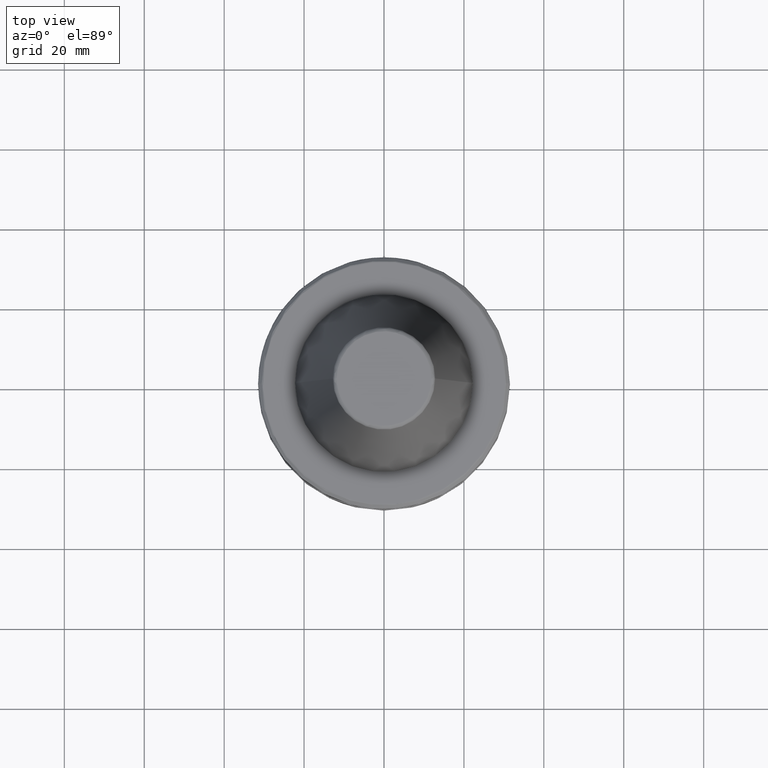
[diagram: clean part render]
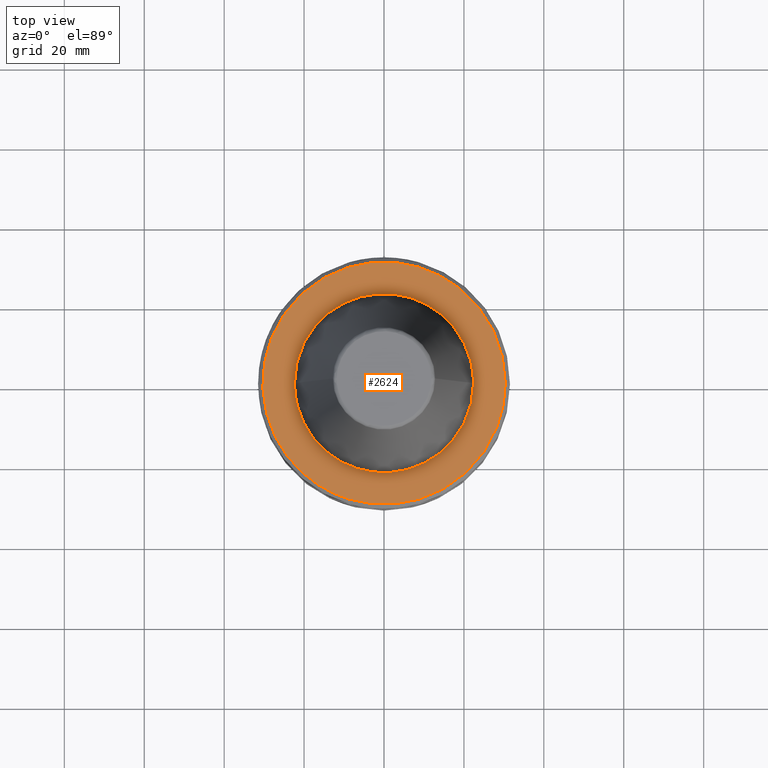
[diagram: same view with one face highlighted and labeled with its STEP entity id]
A machine part, top view. The second image highlights one B-rep face of the part: STEP entity #2624.
In plain terms, the highlighted planar face has unit normal (0, 0, 1).
Its self-contained STEP definition (entity closure, byte-faithful):
#4 = CARTESIAN_POINT ( 'NONE',  ( -13.86393504477004500, 26.99623991430097200, -2.000000000000000000 ) ) ;
#8 = CARTESIAN_POINT ( 'NONE',  ( -4.790134711450524400, -21.89390023238371100, -2.000000000000000000 ) ) ;
#10 = CARTESIAN_POINT ( 'NONE',  ( -4.053654804643145800, -22.03016964884821500, -2.000000000000000400 ) ) ;
#17 = CARTESIAN_POINT ( 'NONE',  ( -19.44404481664019400, 23.28311397324687000, -2.000000000000000400 ) ) ;
#24 = CARTESIAN_POINT ( 'NONE',  ( -4.033857986905861300, -22.03380167325519800, -2.000000000000000900 ) ) ;
#26 = CARTESIAN_POINT ( 'NONE',  ( -3.991735478402046700, -22.04147175140001400, -2.000000000000000000 ) ) ;
#35 = CARTESIAN_POINT ( 'NONE',  ( -23.52996536014796500, 19.16342744047315000, -1.999999999999999600 ) ) ;
#39 = CARTESIAN_POINT ( 'NONE',  ( -3.928543597813360000, -22.05288554609855800, -2.000000000000000000 ) ) ;
#40 = CARTESIAN_POINT ( 'NONE',  ( -3.781039051609005800, -22.07887847609780600, -2.000000000000000400 ) ) ;
#46 = CARTESIAN_POINT ( 'NONE',  ( -28.16784357314933000, 11.25900738457933800, -2.000000000000000000 ) ) ;
#50 = CARTESIAN_POINT ( 'NONE',  ( -3.485802659877216900, -22.12830730557345800, -2.000000000000000400 ) ) ;
#52 = CARTESIAN_POINT ( 'NONE',  ( -2.894420679121409100, -22.21693684243343000, -2.000000000000000400 ) ) ;
#59 = CARTESIAN_POINT ( 'NONE',  ( -30.33434850268801600, -0.9389058282917109900, -2.000000000000000400 ) ) ;
#63 = CARTESIAN_POINT ( 'NONE',  ( -1.708019928440844200, -22.35328342778804300, -2.000000000000000400 ) ) ;
#67 = CARTESIAN_POINT ( 'NONE',  ( -0.6848705035678596100, -22.40001623517999000, -2.000000000000000000 ) ) ;
#76 = CARTESIAN_POINT ( 'NONE',  ( -28.35147241605446000, -10.78739210407821900, -2.000000000000000000 ) ) ;
#78 = CARTESIAN_POINT ( 'NONE',  ( 1.369741007135726100, -22.39996759084313600, -2.000000000000000400 ) ) ;
#87 = CARTESIAN_POINT ( 'NONE',  ( -23.92199290863387900, -18.66095818531789900, -2.000000000000000400 ) ) ;
#91 = CARTESIAN_POINT ( 'NONE',  ( -19.16283713063764400, -11.62407891320974500, -2.000000000000000000 ) ) ;
#97 = CARTESIAN_POINT ( 'NONE',  ( -19.64546217584295800, -23.11334956541279000, -2.000000000000000000 ) ) ;
#100 = CARTESIAN_POINT ( 'NONE',  ( 2.729104587584243000, -22.27531432485545800, -2.000000000000000400 ) ) ;
#107 = CARTESIAN_POINT ( 'NONE',  ( -14.47326145266366700, -26.67452827704320500, -2.000000000000000000 ) ) ;
#109 = CARTESIAN_POINT ( 'NONE',  ( 4.097017186795343800, -22.02214536552509500, -2.000000000000000400 ) ) ;
#119 = FACE_OUTER_BOUND ( 'NONE', #2342, .T. ) ;
#121 = CARTESIAN_POINT ( 'NONE',  ( -18.53468171968460600, -12.57918311306604900, -1.999999999999999600 ) ) ;
#125 = CARTESIAN_POINT ( 'NONE',  ( 4.120618968371013000, -22.01774246194580100, -2.000000000000000400 ) ) ;
#134 = CARTESIAN_POINT ( 'NONE',  ( 4.165236837808812700, -22.00934568661292400, -2.000000000000000000 ) ) ;
#148 = CARTESIAN_POINT ( 'NONE',  ( 4.232134920609001800, -21.99665155892664700, -1.999999999999999600 ) ) ;
#163 = CARTESIAN_POINT ( 'NONE',  ( 4.388029397647224900, -21.96633917484991700, -2.000000000000000000 ) ) ;
#166 = CIRCLE ( 'NONE', #1057, 30.33431457056804700 ) ;
#172 = CARTESIAN_POINT ( 'NONE',  ( 4.699014153741561700, -21.90294339546153100, -2.000000000000000000 ) ) ;
#181 = CARTESIAN_POINT ( 'NONE',  ( 5.317766874001553600, -21.76506779174490100, -2.000000000000000000 ) ) ;
#197 = CARTESIAN_POINT ( 'NONE',  ( 6.542405146806994600, -21.44498040455227500, -1.999999999999999600 ) ) ;
#200 = CARTESIAN_POINT ( 'NONE',  ( 29.28496511360456000, 7.927623278275423700, -2.000000000000000000 ) ) ;
#216 = CARTESIAN_POINT ( 'NONE',  ( 7.570037093129594800, -21.09461490737115600, -2.000000000000000400 ) ) ;
#217 = CARTESIAN_POINT ( 'NONE',  ( 26.23791360764085900, 15.31470929392039800, -2.000000000000000400 ) ) ;
#222 = CARTESIAN_POINT ( 'NONE',  ( 8.287526776482042800, -20.81054815372933200, -2.000000000000000000 ) ) ;
#223 = CARTESIAN_POINT ( 'NONE',  ( 17.53348905833799900, 24.75411212198544700, -1.999999999999999600 ) ) ;
#229 = AXIS2_PLACEMENT_3D ( 'NONE', #343, #1994, #589 ) ;
#230 = CARTESIAN_POINT ( 'NONE',  ( 8.333249195718940100, -20.79228631868154800, -2.000000000000000000 ) ) ;
#234 = CARTESIAN_POINT ( 'NONE',  ( 10.23373916829195500, 28.59794578302451400, -1.999999999999999600 ) ) ;
#246 = CARTESIAN_POINT ( 'NONE',  ( -17.98107825900639200, -13.36824905629754300, -2.000000000000000400 ) ) ;
#253 = PLANE ( 'NONE',  #402 ) ;
#254 = CARTESIAN_POINT ( 'NONE',  ( 8.420970191674745900, -20.75691792898262700, -2.000000000000000000 ) ) ;
#261 = CARTESIAN_POINT ( 'NONE',  ( -21.96633916678071700, -4.388029397836835000, -2.000000000000000000 ) ) ;
#264 = CARTESIAN_POINT ( 'NONE',  ( 8.552344986836052600, -20.70346859882088000, -2.000000000000000900 ) ) ;
#273 = CARTESIAN_POINT ( 'NONE',  ( 8.857439284138854100, -20.57597627581643700, -2.000000000000000000 ) ) ;
#274 = CARTESIAN_POINT ( 'NONE',  ( 9.461840313116967500, -20.30988275263291200, -2.000000000000000000 ) ) ;
#280 = CARTESIAN_POINT ( 'NONE',  ( -15.43930865587911100, 26.11227094434192300, -2.000000000000000400 ) ) ;
#284 = CARTESIAN_POINT ( 'NONE',  ( 10.64749210856316700, -19.73326019756718400, -2.000000000000000400 ) ) ;
#286 = CARTESIAN_POINT ( 'NONE',  ( -5.846925102282645200, -21.64494741349961200, -2.000000000000000000 ) ) ;
#291 = CARTESIAN_POINT ( 'NONE',  ( -19.53336771987599000, 23.20815912961663600, -1.999999999999999600 ) ) ;
#296 = CARTESIAN_POINT ( 'NONE',  ( 11.62407891178553300, -19.16283713545599100, -2.000000000000000000 ) ) ;
#297 = CARTESIAN_POINT ( 'NONE',  ( 12.33667593205085400, -18.69693225998803100, -2.000000000000000400 ) ) ;
#304 = CARTESIAN_POINT ( 'NONE',  ( -25.16642468875459900, 16.94533251061739400, -2.000000000000000000 ) ) ;
#306 = CARTESIAN_POINT ( 'NONE',  ( 12.41893088751900400, -18.64241367805323400, -2.000000000000000000 ) ) ;
#309 = CARTESIAN_POINT ( 'NONE',  ( 12.57918311134769400, -18.53468172407307800, -2.000000000000000000 ) ) ;
#314 = CARTESIAN_POINT ( 'NONE',  ( -28.26991326089169100, 10.99934583375024600, -2.000000000000000000 ) ) ;
#322 = CARTESIAN_POINT ( 'NONE',  ( 12.81838126875511300, -18.37163762944283400, -2.000000000000000000 ) ) ;
#324 = CARTESIAN_POINT ( 'NONE',  ( 13.36824905435640600, -17.98107826301874800, -2.000000000000000000 ) ) ;
#329 = CARTESIAN_POINT ( 'NONE',  ( -30.08025295031816900, -3.967817496690961800, -2.000000000000000400 ) ) ;
#334 = CARTESIAN_POINT ( 'NONE',  ( 14.43493963216165500, -17.15946694768991100, -2.000000000000000400 ) ) ;
#340 = CARTESIAN_POINT ( 'NONE',  ( -27.98957048435147500, -11.72831482739497300, -2.000000000000000000 ) ) ;
#343 = CARTESIAN_POINT ( 'NONE',  ( 0.0000000000000000000, 0.0000000000000000000, -1.999999999989121600 ) ) ;
#344 = CARTESIAN_POINT ( 'NONE',  ( 15.29259728159929000, -16.38581282172689800, -2.000000000000000400 ) ) ;
#349 = CARTESIAN_POINT ( 'NONE',  ( -23.21604298776023600, -19.52449386393572100, -1.999999999999999600 ) ) ;
#354 = CARTESIAN_POINT ( 'NONE',  ( 16.93238116699492200, -14.74595009555934200, -1.999999999999999600 ) ) ;
#366 = CARTESIAN_POINT ( 'NONE',  ( -19.58683755545426700, -23.16305088120773100, -2.000000000000000000 ) ) ;
#369 = CARTESIAN_POINT ( 'NONE',  ( 17.90272196578645800, -13.55154731507344400, -2.000000000000000000 ) ) ;
#373 = CARTESIAN_POINT ( 'NONE',  ( -12.85473386007455900, -27.47687493811404400, -2.000000000000000000 ) ) ;
#377 = CARTESIAN_POINT ( 'NONE',  ( 18.80157305745617400, -12.17662043523567500, -2.000000000000000000 ) ) ;
#385 = CARTESIAN_POINT ( 'NONE',  ( 18.85174392445564400, -12.09879234730396800, -1.999999999999999600 ) ) ;
#389 = CARTESIAN_POINT ( 'NONE',  ( 18.95319762475028100, -11.93926673329125200, -2.000000000000000000 ) ) ;
#394 = CARTESIAN_POINT ( 'NONE',  ( -8.749999995258276500, -29.04493313039568700, -1.999999999989121600 ) ) ;
#401 = CARTESIAN_POINT ( 'NONE',  ( 19.10378741485976300, -11.69915883794632100, -2.000000000000000900 ) ) ;
#402 = AXIS2_PLACEMENT_3D ( 'NONE', #979, #1225, #2870 ) ;
#411 = CARTESIAN_POINT ( 'NONE',  ( 19.44402826945450300, -11.13317076186053900, -2.000000000000000000 ) ) ;
#428 = CARTESIAN_POINT ( 'NONE',  ( 20.07996868933456400, -9.978249328565233600, -2.000000000000000000 ) ) ;
#437 = VERTEX_POINT ( 'NONE', #2005 ) ;
#441 = CARTESIAN_POINT ( 'NONE',  ( 20.89346075911152000, -8.076228133315543900, -2.000000000000000000 ) ) ;
#453 = CARTESIAN_POINT ( 'NONE',  ( 20.94241911247447900, -7.949210505917846200, -2.000000000000000400 ) ) ;
#456 = CARTESIAN_POINT ( 'NONE',  ( 28.98844242100857800, 8.936353995784951800, -2.000000000000000400 ) ) ;
#463 = CARTESIAN_POINT ( 'NONE',  ( 21.05388027571188700, -7.652045637538825500, -2.000000000000000400 ) ) ;
#465 = CARTESIAN_POINT ( 'NONE',  ( 23.86348149767346900, 18.74583124071950000, -2.000000000000000000 ) ) ;
#473 = CARTESIAN_POINT ( 'NONE',  ( -8.076228132638496100, -20.89346076553155700, -2.000000000000000000 ) ) ;
#476 = CARTESIAN_POINT ( 'NONE',  ( 17.32210052135244300, 24.90216815940324200, -1.999999999999999600 ) ) ;
#483 = CARTESIAN_POINT ( 'NONE',  ( 22.03016964062746700, -4.053654804808609800, -1.999999999999999600 ) ) ;
#491 = EDGE_CURVE ( 'NONE', #2143, #1651, #1128, .T. ) ;
#493 = CARTESIAN_POINT ( 'NONE',  ( 22.03380065951906600, -4.033863421417841300, -2.000000000000000000 ) ) ;
#502 = CARTESIAN_POINT ( 'NONE',  ( 22.04146975589081600, -3.991746218888060600, -2.000000000000000000 ) ) ;
#511 = CARTESIAN_POINT ( 'NONE',  ( -22.00934567844255000, -4.165236837982451600, -2.000000000000000900 ) ) ;
#515 = CARTESIAN_POINT ( 'NONE',  ( 22.05288210168188100, -3.928562168890041800, -2.000000000000000900 ) ) ;
#521 = CARTESIAN_POINT ( 'NONE',  ( -10.25527747053567200, 28.56051272945362000, -1.999999999999999600 ) ) ;
#526 = CARTESIAN_POINT ( 'NONE',  ( 22.07887181716179400, -3.781074995471222600, -2.000000000000000000 ) ) ;
#527 = CARTESIAN_POINT ( 'NONE',  ( 22.12829488265795400, -3.485869754939841900, -2.000000000000000400 ) ) ;
#533 = CARTESIAN_POINT ( 'NONE',  ( -15.82650416975778300, 25.87847514487764000, -2.000000000000000000 ) ) ;
#534 = CARTESIAN_POINT ( 'NONE',  ( 22.21691555179570400, -2.894535699102095600, -2.000000000000000000 ) ) ;
#541 = CARTESIAN_POINT ( 'NONE',  ( -20.18085361748751800, 22.66156372729950900, -2.000000000000000000 ) ) ;
#544 = CARTESIAN_POINT ( 'NONE',  ( -8.749999996351261800, 29.04493313006641500, -1.999999999989121600 ) ) ;
#558 = CARTESIAN_POINT ( 'NONE',  ( -25.76806297211553700, 16.00617103037162200, -2.000000000000000400 ) ) ;
#562 = CARTESIAN_POINT ( 'NONE',  ( 22.40000000835618000, 0.0000000000000000000, -1.999999999933527200 ) ) ;
#569 = CARTESIAN_POINT ( 'NONE',  ( -28.64170118580448600, 10.03381388220148900, -2.000000000000000000 ) ) ;
#577 = CARTESIAN_POINT ( 'NONE',  ( -29.89843002777615100, -5.125329618266889900, -2.000000000000000000 ) ) ;
#584 = CARTESIAN_POINT ( 'NONE',  ( -26.73991494629399300, -14.33538825517832300, -2.000000000000000000 ) ) ;
#589 = DIRECTION ( 'NONE',  ( -1.000000000000000000, 0.0000000000000000000, 0.0000000000000000000 ) ) ;
#597 = CARTESIAN_POINT ( 'NONE',  ( -23.04373955721994300, -19.72706941016794200, -2.000000000000000000 ) ) ;
#606 = CARTESIAN_POINT ( 'NONE',  ( -18.12012486186990000, -24.34769762064760800, -2.000000000000000000 ) ) ;
#612 = CARTESIAN_POINT ( 'NONE',  ( -12.44326423161334600, -27.66475818882873500, -2.000000000000000400 ) ) ;
#616 = CARTESIAN_POINT ( 'NONE',  ( -7.652045636929345000, -21.05388028232549400, -2.000000000000000000 ) ) ;
#643 = CARTESIAN_POINT ( 'NONE',  ( -9.978249327583729000, -20.07996869487152800, -2.000000000000000000 ) ) ;
#648 = CARTESIAN_POINT ( 'NONE',  ( 29.96800634096607000, -4.700169782952198900, -2.000000000000000000 ) ) ;
#681 = CARTESIAN_POINT ( 'NONE',  ( 30.29044348444404000, 1.924618328761884100, -2.000000000000000400 ) ) ;
#683 = CARTESIAN_POINT ( 'NONE',  ( 12.89712743390991200, -27.45609076625076000, -2.000000000000000000 ) ) ;
#688 = CARTESIAN_POINT ( 'NONE',  ( 28.91337399538332400, 9.175500369840071000, -2.000000000000000000 ) ) ;
#694 = ORIENTED_EDGE ( 'NONE', *, *, #491, .T. ) ;
#705 = CARTESIAN_POINT ( 'NONE',  ( 22.09103779322449800, 20.79586719158085000, -2.000000000000000000 ) ) ;
#710 = CARTESIAN_POINT ( 'NONE',  ( 16.57532165577689300, 25.41806659426582700, -2.000000000000000000 ) ) ;
#738 = CARTESIAN_POINT ( 'NONE',  ( -22.02214485035051400, -4.097019926222026600, -2.000000000000000000 ) ) ;
#747 = CARTESIAN_POINT ( 'NONE',  ( -11.79741038276943900, 27.94701350929045700, -2.000000000000000000 ) ) ;
#758 = CARTESIAN_POINT ( 'NONE',  ( -15.91830314625390300, 25.82205752340509600, -2.000000000000000400 ) ) ;
#777 = CARTESIAN_POINT ( 'NONE',  ( -22.03925103768566300, 20.85010840707907300, -2.000000000000000000 ) ) ;
#788 = CARTESIAN_POINT ( 'NONE',  ( -25.90711989048321600, 15.77949180602314700, -2.000000000000000000 ) ) ;
#796 = CARTESIAN_POINT ( 'NONE',  ( -29.48219112218133700, 7.166029825863305700, -2.000000000000000000 ) ) ;
#812 = CARTESIAN_POINT ( 'NONE',  ( -29.83653600378522300, -5.474012999355475800, -1.999999999999999600 ) ) ;
#819 = CARTESIAN_POINT ( 'NONE',  ( -26.16251182605156000, -15.35303256530216700, -2.000000000000000000 ) ) ;
#826 = CARTESIAN_POINT ( 'NONE',  ( -22.99071937721490100, -19.78883610483995500, -2.000000000000000000 ) ) ;
#838 = CARTESIAN_POINT ( 'NONE',  ( -16.50694295203247800, -25.45098990459518300, -2.000000000000000000 ) ) ;
#842 = CARTESIAN_POINT ( 'NONE',  ( -20.30988274684888500, -9.461840314018971300, -2.000000000000000400 ) ) ;
#852 = CARTESIAN_POINT ( 'NONE',  ( -12.34489369146922400, -27.70874622258861900, -2.000000000000000400 ) ) ;
#872 = CARTESIAN_POINT ( 'NONE',  ( -14.74595009305637600, -16.93238117048405300, -2.000000000000000900 ) ) ;
#878 = CARTESIAN_POINT ( 'NONE',  ( 26.95284704872256800, -13.91851500325020300, -2.000000000000000900 ) ) ;
#890 = ORIENTED_EDGE ( 'NONE', *, *, #1869, .T. ) ;
#892 = CARTESIAN_POINT ( 'NONE',  ( 30.21732498836204400, -3.076640717618839700, -2.000000000000000900 ) ) ;
#913 = CARTESIAN_POINT ( 'NONE',  ( 30.33431457495774500, 0.7711358328221357100, -2.000000000000000400 ) ) ;
#924 = CARTESIAN_POINT ( 'NONE',  ( -8.201342725864023500, -20.84466758619909800, -2.000000000000000000 ) ) ;
#928 = CARTESIAN_POINT ( 'NONE',  ( 30.07931383398774700, 3.933347608445231900, -1.999999999999999600 ) ) ;
#940 = CARTESIAN_POINT ( 'NONE',  ( 28.63103487922194600, 10.05560206730424300, -2.000000000000000400 ) ) ;
#949 = CARTESIAN_POINT ( 'NONE',  ( 21.35872266831525200, 21.54035235708963800, -2.000000000000000000 ) ) ;
#954 = CARTESIAN_POINT ( 'NONE',  ( 14.32933948057620400, 26.74188312055665100, -2.000000000000000400 ) ) ;
#978 = CARTESIAN_POINT ( 'NONE',  ( -20.81054814740527800, -8.287526777194990800, -2.000000000000000400 ) ) ;
#979 = CARTESIAN_POINT ( 'NONE',  ( -30.69832634999999900, -29.39347233099999800, -2.000000000000000000 ) ) ;
#988 = CARTESIAN_POINT ( 'NONE',  ( -22.40000001097766400, -1.370271815920219400, -2.000000000000000000 ) ) ;
#1002 = CARTESIAN_POINT ( 'NONE',  ( -12.17875664467613800, 27.78220798525248700, -2.000000000000000000 ) ) ;
#1012 = CARTESIAN_POINT ( 'NONE',  ( -16.58929509922856800, 25.40715637296482800, -2.000000000000000400 ) ) ;
#1023 = CARTESIAN_POINT ( 'NONE',  ( -22.74423028801591000, 20.07207445569294500, -2.000000000000000000 ) ) ;
#1032 = CARTESIAN_POINT ( 'NONE',  ( -25.94788095678221400, 15.71237849002951700, -2.000000000000000000 ) ) ;
#1044 = CARTESIAN_POINT ( 'NONE',  ( -29.72705207087749800, 6.040443365021620700, -1.999999999999999600 ) ) ;
#1054 = CARTESIAN_POINT ( 'NONE',  ( -29.32969380276623600, -7.838464997525505000, -2.000000000000000000 ) ) ;
#1056 = CARTESIAN_POINT ( 'NONE',  ( 8.749999998521261100, -29.04493312941268700, -1.999999999989121600 ) ) ;
#1057 = AXIS2_PLACEMENT_3D ( 'NONE', #1303, #1297, #1294 ) ;
#1068 = CARTESIAN_POINT ( 'NONE',  ( -26.01989003437595100, -15.59283809925753800, -2.000000000000000000 ) ) ;
#1081 = CARTESIAN_POINT ( 'NONE',  ( -21.63382071837072800, -21.29030445627731500, -2.000000000000000400 ) ) ;
#1094 = CARTESIAN_POINT ( 'NONE',  ( -16.09363692141360100, -25.71320829329507200, -1.999999999999999600 ) ) ;
#1097 = CARTESIAN_POINT ( 'NONE',  ( -11.93926673176203900, -18.95319762943002200, -2.000000000000000000 ) ) ;
#1102 = CARTESIAN_POINT ( 'NONE',  ( -11.14822061600337300, -28.23993289273504100, -1.999999999999999100 ) ) ;
#1128 = B_SPLINE_CURVE_WITH_KNOTS ( 'NONE', 3,
 ( #1941, #2363, #1643, #2472, #1692, #2195, #2339, #1533, #1766, #2150, #1562, #1546, #2511, #1599, #1540, #2214, #1569, #1808, #1557, #1488, #2001, #2637, #1769, #1552, #1513, #1418, #1362, #1930, #2785, #2961, #2962, #2553, #2387, #2000, #3124, #1758, #2305, #2942, #1752, #1896, #2274, #1846, #2148, #2888, #2694, #2995, #2951, #3135, #3098, #3096, #3168, #2078, #2074, #3001, #1709, #3000, #1665, #2444, #1494, #1425, #2646, #2220, #1529, #1931, #2555, #1677, #2414, #2489, #1518, #1938, #1707, #1979, #1927, #1747, #1522, #1603, #2110, #1567, #1516, #2991, #1436, #2428, #1616, #1638, #1686, #1658, #2564, #1681, #2533, #1475, #1468, #1354, #1791, #1460, #1455, #1577, #1623, #1653, #1456, #1466, #1503, #1497, #2504, #1679, #1480, #1673 ),
 .UNSPECIFIED., .F., .F.,
 ( 4, 1, 1, 1, 1, 1, 2, 2, 1, 1, 1, 1, 2, 2, 1, 1, 1, 2, 2, 2, 1, 1, 1, 2, 2, 1, 1, 1, 1, 2, 2, 1, 1, 1, 1, 1, 2, 2, 2, 1, 1, 1, 1, 1, 2, 2, 1, 1, 1, 1, 2, 2, 1, 1, 1, 2, 2, 2, 1, 1, 1, 2, 2, 1, 1, 1, 1, 2, 2, 1, 1, 1, 1, 1, 2, 2, 4 ),
 ( 0.0000000000000000000, 0.03125000000000140200, 0.04687500000000208900, 0.05468750000000244200, 0.05859375000000261600, 0.06054687500000269200, 0.06152343750000272000, 0.06250000000000273400, 0.09375000000000334500, 0.1093750000000036200, 0.1171875000000037700, 0.1210937500000039100, 0.1230468750000040000, 0.1250000000000040500, 0.1562500000000060000, 0.1718750000000069700, 0.1796875000000074700, 0.1835937500000077400, 0.1875000000000079900, 0.2500000000000127700, 0.2812500000000151000, 0.2968750000000162600, 0.3046875000000168200, 0.3085937500000170400, 0.3125000000000173200, 0.3437500000000187600, 0.3593750000000194300, 0.3671875000000198200, 0.3710937500000199800, 0.3730468750000200400, 0.3750000000000201500, 0.4062500000000215400, 0.4218750000000222600, 0.4296875000000225900, 0.4335937500000227600, 0.4355468750000228700, 0.4365234375000229300, 0.4375000000000229800, 0.5000000000000230900, 0.5312500000000232000, 0.5468750000000232000, 0.5546875000000232000, 0.5585937500000232000, 0.5605468750000230900, 0.5615234375000230900, 0.5625000000000229800, 0.5937500000000222000, 0.6093750000000217600, 0.6171875000000215400, 0.6210937500000215400, 0.6230468750000215400, 0.6250000000000214300, 0.6562500000000203200, 0.6718750000000197600, 0.6796875000000195400, 0.6835937500000193200, 0.6875000000000192100, 0.7500000000000158800, 0.7812500000000142100, 0.7968750000000133200, 0.8046875000000128800, 0.8085937500000126600, 0.8125000000000123200, 0.8437500000000105500, 0.8593750000000095500, 0.8671875000000091000, 0.8710937500000088800, 0.8730468750000087700, 0.8750000000000085500, 0.9062500000000063300, 0.9218750000000051100, 0.9296875000000046600, 0.9335937500000043300, 0.9355468750000042200, 0.9365234375000041100, 0.9375000000000041100, 1.000000000000000000 ),
 .UNSPECIFIED. ) ;
#1132 = CARTESIAN_POINT ( 'NONE',  ( -7.949210505261334900, -20.94241911895257100, -2.000000000000000000 ) ) ;
#1136 = CARTESIAN_POINT ( 'NONE',  ( 14.86304721641551100, -26.46506223650218500, -1.999999999999999600 ) ) ;
#1178 = CARTESIAN_POINT ( 'NONE',  ( 30.01202196902659800, 4.410366571173019800, -2.000000000000000000 ) ) ;
#1182 = CARTESIAN_POINT ( 'NONE',  ( 22.40000001067058500, -0.6849581377763511700, -1.999999999999999600 ) ) ;
#1186 = CARTESIAN_POINT ( 'NONE',  ( 27.63043995594169600, 12.53122094857506700, -2.000000000000000400 ) ) ;
#1198 = CARTESIAN_POINT ( 'NONE',  ( 21.13380436672222400, 21.76105186226379800, -2.000000000000000000 ) ) ;
#1204 = CARTESIAN_POINT ( 'NONE',  ( 13.38908001657671300, 27.21986155912927800, -2.000000000000000000 ) ) ;
#1210 = CARTESIAN_POINT ( 'NONE',  ( 22.40000000835618000, 0.0000000000000000000, -1.999999999933527200 ) ) ;
#1222 = CARTESIAN_POINT ( 'NONE',  ( -21.76506778409653000, -5.317766874270956700, -2.000000000000000000 ) ) ;
#1225 = DIRECTION ( 'NONE',  ( 0.0000000000000000000, 0.0000000000000000000, 1.000000000000000000 ) ) ;
#1238 = CARTESIAN_POINT ( 'NONE',  ( -12.26930747251484800, 27.74229724682614400, -2.000000000000000000 ) ) ;
#1246 = CARTESIAN_POINT ( 'NONE',  ( -18.55689912336255900, 24.00122431732050300, -2.000000000000000000 ) ) ;
#1256 = ORIENTED_EDGE ( 'NONE', *, *, #1575, .T. ) ;
#1260 = CARTESIAN_POINT ( 'NONE',  ( -22.90886212186387600, 19.88354019471463700, -2.000000000000000000 ) ) ;
#1264 = CARTESIAN_POINT ( 'NONE',  ( -11.69915883649470500, -19.10378741964200000, -2.000000000000000000 ) ) ;
#1272 = CARTESIAN_POINT ( 'NONE',  ( -27.06379350546797400, 13.75230535336096000, -2.000000000000000400 ) ) ;
#1276 = CARTESIAN_POINT ( 'NONE',  ( -8.160831274275462700, -20.86055757804999900, -2.000000000000000400 ) ) ;
#1282 = CARTESIAN_POINT ( 'NONE',  ( -29.79366742603726300, 5.702766236665639500, -2.000000000000000000 ) ) ;
#1289 = CARTESIAN_POINT ( 'NONE',  ( -28.59158493528356700, -10.13841457430544000, -2.000000000000000000 ) ) ;
#1294 = DIRECTION ( 'NONE',  ( -1.000000000000000000, 0.0000000000000000000, 0.0000000000000000000 ) ) ;
#1297 = DIRECTION ( 'NONE',  ( -0.0000000000000000000, -0.0000000000000000000, -1.000000000000000000 ) ) ;
#1300 = CARTESIAN_POINT ( 'NONE',  ( -25.97605902264090700, -15.66574758102302500, -2.000000000000000400 ) ) ;
#1303 = CARTESIAN_POINT ( 'NONE',  ( 0.0000000000000000000, 0.0000000000000000000, -1.999999999989121600 ) ) ;
#1309 = CARTESIAN_POINT ( 'NONE',  ( -20.09991644206128600, -22.72080783087966400, -2.000000000000000000 ) ) ;
#1316 = CARTESIAN_POINT ( 'NONE',  ( -15.99464280227116200, -25.77484223783531500, -2.000000000000000900 ) ) ;
#1324 = CARTESIAN_POINT ( 'NONE',  ( -8.749999995258276500, -29.04493313039568700, -1.999999999989121600 ) ) ;
#1329 = CARTESIAN_POINT ( 'NONE',  ( -12.09879234572204600, -18.85174392906756300, -2.000000000000000900 ) ) ;
#1338 = CARTESIAN_POINT ( 'NONE',  ( 20.84466757983567600, -8.201342726563039400, -2.000000000000000000 ) ) ;
#1353 = B_SPLINE_CURVE_WITH_KNOTS ( 'NONE', 3,
 ( #3169, #1932, #521, #2139, #747, #2327, #1002, #2592, #1238, #2894, #1469, #4, #1720, #280, #1943, #533, #2155, #758, #2332, #1012, #2611, #1246, #2905, #1481, #17, #1725, #291, #1956, #541, #2160, #777, #2341, #1023, #2628, #1260, #2917, #1496, #35, #1734, #304, #1967, #558, #2169, #788, #2358, #1032, #2638, #1272, #2935, #1505, #46, #1745, #314, #1971, #569, #2181, #796, #2367, #1044, #2649, #1282, #2943, #1523, #59, #1756, #329, #1980, #577, #2188, #812, #2372, #1054, #2669, #1289, #2953, #1530, #76, #1767, #340, #1991, #584, #2196, #819, #2385, #1068, #2680, #1300, #2966, #1541, #87, #1779, #349, #1999, #597, #2204, #826, #2396, #1081, #2692, #1309, #2982, #1550, #97, #1793, #366, #2006, #606, #2215, #838, #2405, #1094, #2704, #1316, #2993, #1565, #107, #1801, #373, #2017, #612, #2222, #852, #2415, #1102, #2718, #1324 ),
 .UNSPECIFIED., .F., .F.,
 ( 4, 1, 1, 1, 1, 1, 2, 2, 1, 1, 1, 1, 1, 2, 2, 1, 1, 1, 1, 1, 2, 2, 1, 1, 1, 1, 1, 2, 2, 1, 1, 1, 1, 1, 2, 2, 1, 1, 1, 1, 2, 2, 1, 1, 1, 2, 2, 2, 1, 1, 1, 2, 2, 1, 1, 1, 1, 2, 2, 1, 1, 1, 1, 1, 2, 2, 1, 1, 1, 1, 1, 2, 2, 1, 1, 1, 1, 1, 2, 2, 1, 1, 1, 1, 1, 2, 2, 1, 1, 1, 1, 1, 2, 2, 4 ),
 ( 0.0000000000000000000, 0.03124999999999831400, 0.04687499999999744600, 0.05468749999999696800, 0.05859374999999672500, 0.06054687499999664900, 0.06152343749999664900, 0.06249999999999664200, 0.09374999999999542000, 0.1093749999999947500, 0.1171874999999943900, 0.1210937499999942500, 0.1230468749999941900, 0.1240234374999940700, 0.1249999999999939800, 0.1562499999999872900, 0.1718749999999840100, 0.1796874999999824300, 0.1835937499999816800, 0.1855468749999812600, 0.1865234374999810400, 0.1874999999999808500, 0.2187499999999765700, 0.2343749999999743800, 0.2421874999999732400, 0.2460937499999726900, 0.2480468749999724400, 0.2490234374999723600, 0.2499999999999722700, 0.2812499999999717400, 0.2968749999999715200, 0.3046874999999714100, 0.3085937499999713000, 0.3105468749999713000, 0.3115234374999713000, 0.3124999999999713000, 0.3437499999999729100, 0.3593749999999736900, 0.3671874999999740800, 0.3710937499999742400, 0.3730468749999743000, 0.3749999999999744100, 0.4062499999999758000, 0.4218749999999765200, 0.4296874999999768500, 0.4335937499999770700, 0.4374999999999772400, 0.4999999999999802400, 0.5312499999999817900, 0.5468749999999824600, 0.5546874999999827900, 0.5585937499999831200, 0.5624999999999833500, 0.5937499999999846800, 0.6093749999999854600, 0.6171874999999857900, 0.6210937499999860100, 0.6230468749999861200, 0.6249999999999862300, 0.6562499999999881200, 0.6718749999999890100, 0.6796874999999895600, 0.6835937499999897900, 0.6855468749999899000, 0.6865234374999899000, 0.6874999999999900100, 0.7187499999999956700, 0.7343749999999984500, 0.7421874999999997800, 0.7460937500000003300, 0.7480468750000006700, 0.7490234375000007800, 0.7500000000000007800, 0.7812500000000030000, 0.7968750000000041100, 0.8046875000000046600, 0.8085937500000048800, 0.8105468750000050000, 0.8115234375000050000, 0.8125000000000048800, 0.8437500000000022200, 0.8593750000000007800, 0.8671875000000002200, 0.8710937500000000000, 0.8730468749999998900, 0.8740234374999997800, 0.8749999999999997800, 0.9062499999999998900, 0.9218749999999998900, 0.9296874999999998900, 0.9335937500000000000, 0.9355468750000000000, 0.9365234375000001100, 0.9375000000000001100, 1.000000000000000000 ),
 .UNSPECIFIED. ) ;
#1354 = CARTESIAN_POINT ( 'NONE',  ( 20.75691792272389000, 8.420970192399499500, -2.000000000000000000 ) ) ;
#1362 = CARTESIAN_POINT ( 'NONE',  ( -16.93238116704767300, 14.74595009550162000, -2.000000000000000400 ) ) ;
#1373 = CARTESIAN_POINT ( 'NONE',  ( 28.81921695750475700, -9.467094502670475400, -2.000000000000000400 ) ) ;
#1384 = CARTESIAN_POINT ( 'NONE',  ( 24.85979782895296700, -17.40291328486915400, -2.000000000000000400 ) ) ;
#1395 = CARTESIAN_POINT ( 'NONE',  ( 29.99094538698036800, 4.551510424771911400, -2.000000000000000400 ) ) ;
#1400 = CARTESIAN_POINT ( 'NONE',  ( 21.89390022448612100, -4.790134711685517700, -2.000000000000000000 ) ) ;
#1406 = CARTESIAN_POINT ( 'NONE',  ( 27.18531222176667900, 13.45883579409428400, -2.000000000000000000 ) ) ;
#1416 = CARTESIAN_POINT ( 'NONE',  ( -13.55154731310642900, -17.90272196970963800, -2.000000000000000000 ) ) ;
#1418 = CARTESIAN_POINT ( 'NONE',  ( -17.90272196576564700, 13.55154731508927100, -2.000000000000000400 ) ) ;
#1419 = CARTESIAN_POINT ( 'NONE',  ( 19.54191334571602200, 23.22680738813151200, -2.000000000000000000 ) ) ;
#1422 = CARTESIAN_POINT ( 'NONE',  ( 13.16287410203241500, 27.32968643841569200, -1.999999999999999600 ) ) ;
#1425 = CARTESIAN_POINT ( 'NONE',  ( 3.991735478399390100, 22.04147175139975100, -1.999999999999999600 ) ) ;
#1436 = CARTESIAN_POINT ( 'NONE',  ( 17.15946694420549400, 14.43493963440650600, -2.000000000000000000 ) ) ;
#1454 = CARTESIAN_POINT ( 'NONE',  ( -20.57597626975594800, -8.857439284936020800, -2.000000000000000000 ) ) ;
#1455 = CARTESIAN_POINT ( 'NONE',  ( 21.09461490073368500, 7.570037093688072500, -2.000000000000000000 ) ) ;
#1456 = CARTESIAN_POINT ( 'NONE',  ( 21.96633916678201400, 4.388029397830709200, -2.000000000000000400 ) ) ;
#1460 = CARTESIAN_POINT ( 'NONE',  ( 20.81054814740506500, 8.287526777195934000, -2.000000000000000000 ) ) ;
#1466 = CARTESIAN_POINT ( 'NONE',  ( 21.99665155078732300, 4.232134920784139000, -2.000000000000000400 ) ) ;
#1468 = CARTESIAN_POINT ( 'NONE',  ( 20.70346859262468800, 8.552344987576608700, -2.000000000000000000 ) ) ;
#1469 = CARTESIAN_POINT ( 'NONE',  ( -12.93535722674042400, 27.44673653023387800, -2.000000000000000000 ) ) ;
#1475 = CARTESIAN_POINT ( 'NONE',  ( 20.57597626976470900, 8.857439284919520300, -2.000000000000000000 ) ) ;
#1480 = CARTESIAN_POINT ( 'NONE',  ( 22.40000001097767100, 1.370271815916555700, -1.999999999999999100 ) ) ;
#1481 = CARTESIAN_POINT ( 'NONE',  ( -19.31862117306250700, 23.38753201388479800, -2.000000000000000000 ) ) ;
#1488 = CARTESIAN_POINT ( 'NONE',  ( -20.07996868931588400, 9.978249328607537500, -2.000000000000000400 ) ) ;
#1494 = CARTESIAN_POINT ( 'NONE',  ( 3.928543597808767300, 22.05288554609809300, -2.000000000000000000 ) ) ;
#1496 = CARTESIAN_POINT ( 'NONE',  ( -22.95702003230420000, 19.82792287352721100, -2.000000000000000000 ) ) ;
#1497 = CARTESIAN_POINT ( 'NONE',  ( 22.01774245375534600, 4.120618968540661300, -2.000000000000000400 ) ) ;
#1503 = CARTESIAN_POINT ( 'NONE',  ( 22.00934567844292600, 4.165236837980620200, -2.000000000000000000 ) ) ;
#1505 = CARTESIAN_POINT ( 'NONE',  ( -28.02167320665008200, 11.62091287132663600, -2.000000000000000000 ) ) ;
#1513 = CARTESIAN_POINT ( 'NONE',  ( -18.80157305745747100, 12.17662043523467500, -2.000000000000000000 ) ) ;
#1516 = CARTESIAN_POINT ( 'NONE',  ( 14.74595009301250800, 16.93238117054285400, -2.000000000000000400 ) ) ;
#1518 = CARTESIAN_POINT ( 'NONE',  ( 8.160831274269966700, 20.86055757805182500, -2.000000000000000000 ) ) ;
#1522 = CARTESIAN_POINT ( 'NONE',  ( 11.93926673176089200, 18.95319762943182000, -2.000000000000000000 ) ) ;
#1523 = CARTESIAN_POINT ( 'NONE',  ( -30.33424671947239300, 1.877811656582892400, -2.000000000000000400 ) ) ;
#1529 = CARTESIAN_POINT ( 'NONE',  ( 4.790134711405798400, 21.89390023239861800, -2.000000000000000400 ) ) ;
#1530 = CARTESIAN_POINT ( 'NONE',  ( -28.39230734260408400, -10.67945682077628100, -2.000000000000000000 ) ) ;
#1533 = CARTESIAN_POINT ( 'NONE',  ( -22.04146975589081600, 3.991746218885305900, -1.999999999999999600 ) ) ;
#1540 = CARTESIAN_POINT ( 'NONE',  ( -20.94241911247749100, 7.949210505911340300, -2.000000000000000400 ) ) ;
#1541 = CARTESIAN_POINT ( 'NONE',  ( -24.81884912106690400, -17.47771018748383700, -2.000000000000000000 ) ) ;
#1546 = CARTESIAN_POINT ( 'NONE',  ( -21.64494740608344600, 5.846925102607626100, -2.000000000000000400 ) ) ;
#1550 = CARTESIAN_POINT ( 'NONE',  ( -19.70267057813662200, -23.06468291248901900, -2.000000000000000000 ) ) ;
#1552 = CARTESIAN_POINT ( 'NONE',  ( -18.85174392445306400, 12.09879234730981600, -2.000000000000000000 ) ) ;
#1557 = CARTESIAN_POINT ( 'NONE',  ( -20.54870398183353300, 8.948981903838408400, -2.000000000000000000 ) ) ;
#1562 = CARTESIAN_POINT ( 'NONE',  ( -21.89390022449347100, 4.790134711669678000, -2.000000000000000900 ) ) ;
#1563 = CIRCLE ( 'NONE', #229, 30.33431457056804700 ) ;
#1565 = CARTESIAN_POINT ( 'NONE',  ( -15.36896004670845700, -26.16184323529070400, -1.999999999999999600 ) ) ;
#1567 = CARTESIAN_POINT ( 'NONE',  ( 13.55154731316298600, 17.90272196966803600, -1.999999999999999600 ) ) ;
#1569 = CARTESIAN_POINT ( 'NONE',  ( -20.86055757166954500, 8.160831274964353500, -1.999999999999999600 ) ) ;
#1574 = CARTESIAN_POINT ( 'NONE',  ( 30.33431457056804700, 0.0000000000000000000, -1.999999999989127100 ) ) ;
#1575 = EDGE_CURVE ( 'NONE', #1740, #2763, #2448, .T. ) ;
#1577 = CARTESIAN_POINT ( 'NONE',  ( 21.44498039746019200, 6.542405147188623500, -2.000000000000000000 ) ) ;
#1578 = CARTESIAN_POINT ( 'NONE',  ( 30.33431457497231800, -1.542959060756516500, -1.999999999999999600 ) ) ;
#1588 = CARTESIAN_POINT ( 'NONE',  ( 29.95230555146723000, -4.799207299988145400, -1.999999999999999600 ) ) ;
#1597 = ORIENTED_EDGE ( 'NONE', *, *, #2815, .F. ) ;
#1599 = CARTESIAN_POINT ( 'NONE',  ( -21.05388027571751800, 7.652045637526698300, -2.000000000000000000 ) ) ;
#1601 = CARTESIAN_POINT ( 'NONE',  ( 29.92839304592521900, -4.947676280212855100, -2.000000000000000000 ) ) ;
#1603 = CARTESIAN_POINT ( 'NONE',  ( 12.09879234572143300, 18.85174392906850500, -2.000000000000000900 ) ) ;
#1604 = EDGE_CURVE ( 'NONE', #2705, #437, #166, .T. ) ;
#1608 = CARTESIAN_POINT ( 'NONE',  ( 29.87006795060429500, -5.293492833432644300, -2.000000000000000400 ) ) ;
#1612 = CARTESIAN_POINT ( 'NONE',  ( 28.86752176973920600, -9.318756927311326900, -2.000000000000000000 ) ) ;
#1614 = CARTESIAN_POINT ( 'NONE',  ( 29.74330076373739500, -5.982681670654143200, -2.000000000000000000 ) ) ;
#1616 = CARTESIAN_POINT ( 'NONE',  ( 18.37163762518639800, 12.81838127051495800, -2.000000000000000900 ) ) ;
#1623 = CARTESIAN_POINT ( 'NONE',  ( 21.76506778410063700, 5.317766874251321800, -2.000000000000000000 ) ) ;
#1626 = CARTESIAN_POINT ( 'NONE',  ( -12.17662043362020800, -18.80157306203985400, -2.000000000000000400 ) ) ;
#1637 = CARTESIAN_POINT ( 'NONE',  ( 29.44929840510347300, -7.351282268224775200, -2.000000000000000000 ) ) ;
#1638 = CARTESIAN_POINT ( 'NONE',  ( 18.53468171969471400, 12.57918311305249000, -1.999999999999999600 ) ) ;
#1639 = CARTESIAN_POINT ( 'NONE',  ( 29.63299433789082100, 6.571761916065993200, -2.000000000000000000 ) ) ;
#1643 = CARTESIAN_POINT ( 'NONE',  ( -22.35325504265290800, 1.708173288287334600, -1.999999999999999600 ) ) ;
#1644 = CARTESIAN_POINT ( 'NONE',  ( 21.26570262374876600, -7.054554282976593700, -2.000000000000000000 ) ) ;
#1646 = CARTESIAN_POINT ( 'NONE',  ( 29.12792269501712300, -8.507607791504156600, -2.000000000000000000 ) ) ;
#1648 = CARTESIAN_POINT ( 'NONE',  ( 27.04741519290263000, 13.73385100729112400, -2.000000000000000000 ) ) ;
#1651 = VERTEX_POINT ( 'NONE', #1210 ) ;
#1653 = CARTESIAN_POINT ( 'NONE',  ( 21.90294338753573900, 4.699014153944027300, -2.000000000000000000 ) ) ;
#1655 = CARTESIAN_POINT ( 'NONE',  ( 28.77086676128252300, -9.613867879765170000, -2.000000000000000000 ) ) ;
#1658 = CARTESIAN_POINT ( 'NONE',  ( 18.69693225547596800, 12.33667593371616400, -2.000000000000000000 ) ) ;
#1659 = CARTESIAN_POINT ( 'NONE',  ( 17.82744021350118400, 24.54442542351202800, -2.000000000000000000 ) ) ;
#1665 = CARTESIAN_POINT ( 'NONE',  ( 3.485802659860605300, 22.12830730557174200, -1.999999999999999600 ) ) ;
#1668 = ORIENTED_EDGE ( 'NONE', *, *, #1890, .T. ) ;
#1670 = CARTESIAN_POINT ( 'NONE',  ( 28.65551639303922500, -9.955275910145012100, -2.000000000000000000 ) ) ;
#1672 = CARTESIAN_POINT ( 'NONE',  ( 11.67444807647342700, 28.04068962653051500, -1.999999999999999600 ) ) ;
#1673 = CARTESIAN_POINT ( 'NONE',  ( 22.40000000835618000, 0.0000000000000000000, -1.999999999933527200 ) ) ;
#1677 = CARTESIAN_POINT ( 'NONE',  ( 7.652045636895108400, 21.05388028233691200, -2.000000000000000000 ) ) ;
#1679 = CARTESIAN_POINT ( 'NONE',  ( 22.27534676231670800, 2.728929275164632400, -1.999999999999999600 ) ) ;
#1681 = CARTESIAN_POINT ( 'NONE',  ( 19.73326019233899600, 10.64749210967427100, -2.000000000000000400 ) ) ;
#1684 = CARTESIAN_POINT ( 'NONE',  ( 28.41468268165364100, -10.63383923954029900, -2.000000000000000000 ) ) ;
#1686 = CARTESIAN_POINT ( 'NONE',  ( 18.64241367359246500, 12.41893088918845000, -2.000000000000000000 ) ) ;
#1690 = CARTESIAN_POINT ( 'NONE',  ( 27.89248335928646200, -11.97395497287320300, -2.000000000000000000 ) ) ;
#1692 = CARTESIAN_POINT ( 'NONE',  ( -22.12829488265795800, 3.485869754922647200, -2.000000000000000400 ) ) ;
#1695 = CARTESIAN_POINT ( 'NONE',  ( -21.90294338753334500, -4.699014153955477700, -2.000000000000000000 ) ) ;
#1701 = EDGE_LOOP ( 'NONE', ( #890, #694 ) ) ;
#1702 = CARTESIAN_POINT ( 'NONE',  ( 26.80685778623102800, -14.19768185609991400, -2.000000000000000400 ) ) ;
#1707 = CARTESIAN_POINT ( 'NONE',  ( 8.948981903015386800, 20.54870398785878300, -2.000000000000000000 ) ) ;
#1709 = CARTESIAN_POINT ( 'NONE',  ( 1.708019928402878300, 22.35328342778412400, -2.000000000000000000 ) ) ;
#1713 = CARTESIAN_POINT ( 'NONE',  ( 26.65975982099701400, -14.47430759436279700, -2.000000000000000400 ) ) ;
#1715 = CARTESIAN_POINT ( 'NONE',  ( 26.30695837363680000, -15.11375304871028300, -2.000000000000000000 ) ) ;
#1720 = CARTESIAN_POINT ( 'NONE',  ( -14.91891150650396900, 26.41603201928793600, -2.000000000000000000 ) ) ;
#1722 = CARTESIAN_POINT ( 'NONE',  ( 23.33843514651465200, -19.39570259170696400, -2.000000000000000400 ) ) ;
#1723 = CARTESIAN_POINT ( 'NONE',  ( 22.23768576478844500, -20.64855763321275000, -2.000000000000000000 ) ) ;
#1725 = CARTESIAN_POINT ( 'NONE',  ( -19.49765729365970700, 23.23816722204913200, -2.000000000000000000 ) ) ;
#1727 = CARTESIAN_POINT ( 'NONE',  ( 21.66150931711510500, -21.25208093491370700, -2.000000000000000900 ) ) ;
#1729 = CARTESIAN_POINT ( 'NONE',  ( 20.98428383707103600, -21.90527740289385500, -2.000000000000000000 ) ) ;
#1734 = CARTESIAN_POINT ( 'NONE',  ( -24.32014381572162500, 18.16524756378626600, -2.000000000000000000 ) ) ;
#1738 = CARTESIAN_POINT ( 'NONE',  ( 30.33431457056804700, 0.0000000000000000000, -1.999999999989127100 ) ) ;
#1739 = CARTESIAN_POINT ( 'NONE',  ( 20.91051519338373800, -21.97570147255803300, -2.000000000000000000 ) ) ;
#1740 = VERTEX_POINT ( 'NONE', #1056 ) ;
#1741 = CARTESIAN_POINT ( 'NONE',  ( 20.76050751762748400, -22.11747805115144400, -1.999999999999999600 ) ) ;
#1745 = CARTESIAN_POINT ( 'NONE',  ( -28.22925040110534000, 11.10329216926238900, -2.000000000000000400 ) ) ;
#1747 = CARTESIAN_POINT ( 'NONE',  ( 11.69915883649278900, 19.10378741964498400, -2.000000000000000400 ) ) ;
#1749 = CARTESIAN_POINT ( 'NONE',  ( 20.53450424748459500, -22.32891804263963200, -1.999999999999999600 ) ) ;
#1751 = CARTESIAN_POINT ( 'NONE',  ( 20.00022098825824200, -22.81370388796543500, -2.000000000000000000 ) ) ;
#1752 = CARTESIAN_POINT ( 'NONE',  ( -8.552344986805241700, 20.70346859883634500, -2.000000000000000400 ) ) ;
#1756 = CARTESIAN_POINT ( 'NONE',  ( -30.26949578131196000, -2.341511649823079500, -2.000000000000000000 ) ) ;
#1758 = CARTESIAN_POINT ( 'NONE',  ( -10.64749210843171700, 19.73326019763321400, -2.000000000000000400 ) ) ;
#1760 = CARTESIAN_POINT ( 'NONE',  ( 18.90388528756719600, -23.74897903936363300, -2.000000000000000000 ) ) ;
#1762 = CARTESIAN_POINT ( 'NONE',  ( 17.91656466028057400, -24.49184938755630000, -1.999999999999999600 ) ) ;
#1766 = CARTESIAN_POINT ( 'NONE',  ( -22.03380065951906600, 4.033863421416446800, -1.999999999999999600 ) ) ;
#1767 = CARTESIAN_POINT ( 'NONE',  ( -28.33020065102957800, -10.84312523421790800, -2.000000000000000000 ) ) ;
#1769 = CARTESIAN_POINT ( 'NONE',  ( -18.95319762474537100, 11.93926673330238100, -1.999999999999999600 ) ) ;
#1771 = CARTESIAN_POINT ( 'NONE',  ( 17.19473273509293400, -24.99028535241623300, -1.999999999999999600 ) ) ;
#1779 = CARTESIAN_POINT ( 'NONE',  ( -23.45453179581802400, -19.23892485865907900, -2.000000000000000000 ) ) ;
#1783 = CARTESIAN_POINT ( 'NONE',  ( 17.15432187163298400, -25.01803868001894000, -1.999999999999999600 ) ) ;
#1791 = CARTESIAN_POINT ( 'NONE',  ( 20.79228631238094500, 8.333249196433461800, -2.000000000000000000 ) ) ;
#1793 = CARTESIAN_POINT ( 'NONE',  ( -19.60727952734606200, -23.14575034748246600, -2.000000000000000000 ) ) ;
#1797 = CARTESIAN_POINT ( 'NONE',  ( 17.07126456106308200, -25.07478705869351300, -1.999999999999999600 ) ) ;
#1801 = CARTESIAN_POINT ( 'NONE',  ( -13.39910544360528500, -27.21845959032815200, -2.000000000000000400 ) ) ;
#1803 = CARTESIAN_POINT ( 'NONE',  ( 16.94649284957991900, -25.15958491513842800, -2.000000000000000000 ) ) ;
#1808 = CARTESIAN_POINT ( 'NONE',  ( -20.84466757983634000, 8.201342726561531300, -2.000000000000000000 ) ) ;
#1814 = CARTESIAN_POINT ( 'NONE',  ( 16.65405863672091500, -25.35517359920790200, -2.000000000000000400 ) ) ;
#1819 = CARTESIAN_POINT ( 'NONE',  ( 13.02675932775863500, -27.39482814550383000, -2.000000000000000000 ) ) ;
#1830 = CARTESIAN_POINT ( 'NONE',  ( 12.98468914486458700, -27.41478953217453800, -2.000000000000000000 ) ) ;
#1837 = CARTESIAN_POINT ( 'NONE',  ( 12.76566073768757700, -27.51771898115031300, -2.000000000000000400 ) ) ;
#1846 = CARTESIAN_POINT ( 'NONE',  ( -8.287526776485403700, 20.81054815372847200, -1.999999999999999600 ) ) ;
#1848 = CARTESIAN_POINT ( 'NONE',  ( 12.45803620463637200, -27.65925269574582400, -2.000000000000000000 ) ) ;
#1859 = CARTESIAN_POINT ( 'NONE',  ( 11.83931150440451100, -27.93325831092310800, -2.000000000000000000 ) ) ;
#1869 = EDGE_CURVE ( 'NONE', #1651, #2143, #2355, .T. ) ;
#1870 = CARTESIAN_POINT ( 'NONE',  ( 10.58795956742288700, -28.44502228522262400, -2.000000000000000000 ) ) ;
#1876 = CARTESIAN_POINT ( 'NONE',  ( 29.09066434467212400, 8.600888071295818400, -2.000000000000000000 ) ) ;
#1887 = CARTESIAN_POINT ( 'NONE',  ( 25.35837477805116800, 16.73074219767378400, -1.999999999999999600 ) ) ;
#1890 = EDGE_CURVE ( 'NONE', #2705, #3014, #1353, .T. ) ;
#1893 = CARTESIAN_POINT ( 'NONE',  ( 17.40675641328700300, 24.84306716860866600, -2.000000000000000000 ) ) ;
#1896 = CARTESIAN_POINT ( 'NONE',  ( -8.420970191656710600, 20.75691792899169000, -1.999999999999999600 ) ) ;
#1898 = CARTESIAN_POINT ( 'NONE',  ( 8.749999998521261100, -29.04493312941268700, -1.999999999989121600 ) ) ;
#1899 = CARTESIAN_POINT ( 'NONE',  ( 8.750000000561737300, 29.04493312879797900, -1.999999999989121600 ) ) ;
#1903 = CARTESIAN_POINT ( 'NONE',  ( 9.491539273122217700, -28.82153896709930800, -2.000000000000000400 ) ) ;
#1921 = CARTESIAN_POINT ( 'NONE',  ( -21.99665155078666600, -4.232134920787297400, -2.000000000000000000 ) ) ;
#1927 = CARTESIAN_POINT ( 'NONE',  ( 11.13317076057627600, 19.44402827448635000, -2.000000000000000000 ) ) ;
#1930 = CARTESIAN_POINT ( 'NONE',  ( -15.29259728157291300, 16.38581282175576700, -2.000000000000000400 ) ) ;
#1931 = CARTESIAN_POINT ( 'NONE',  ( 5.846925102204362000, 21.64494741352570600, -1.999999999999999600 ) ) ;
#1932 = CARTESIAN_POINT ( 'NONE',  ( -9.356194274630784200, 28.86231264468276300, -1.999999999999999600 ) ) ;
#1938 = CARTESIAN_POINT ( 'NONE',  ( 8.201342725864188700, 20.84466758619885200, -2.000000000000000000 ) ) ;
#1941 = CARTESIAN_POINT ( 'NONE',  ( -22.40000000835618000, 3.033704079351152500E-015, -1.999999999933527200 ) ) ;
#1943 = CARTESIAN_POINT ( 'NONE',  ( -15.69773446019372200, 25.95697612500904200, -2.000000000000000000 ) ) ;
#1948 = CARTESIAN_POINT ( 'NONE',  ( -17.15946694416710000, -14.43493963445796900, -2.000000000000000000 ) ) ;
#1956 = CARTESIAN_POINT ( 'NONE',  ( -19.54991186123814700, 23.19422695980921400, -2.000000000000000000 ) ) ;
#1967 = CARTESIAN_POINT ( 'NONE',  ( -25.57066662732033900, 16.32153201810774900, -2.000000000000000400 ) ) ;
#1971 = CARTESIAN_POINT ( 'NONE',  ( -28.28944248218890700, 10.94903154329216500, -2.000000000000000400 ) ) ;
#1979 = CARTESIAN_POINT ( 'NONE',  ( 9.978249327579375100, 20.07996869487834600, -2.000000000000000000 ) ) ;
#1980 = CARTESIAN_POINT ( 'NONE',  ( -29.95723620414082000, -4.778453517228570000, -2.000000000000000900 ) ) ;
#1991 = CARTESIAN_POINT ( 'NONE',  ( -27.45564390892030800, -12.95231799914597700, -2.000000000000000400 ) ) ;
#1994 = DIRECTION ( 'NONE',  ( -0.0000000000000000000, -0.0000000000000000000, -1.000000000000000000 ) ) ;
#1999 = CARTESIAN_POINT ( 'NONE',  ( -23.09560902081891200, -19.66642478372554600, -2.000000000000000000 ) ) ;
#2000 = CARTESIAN_POINT ( 'NONE',  ( -12.33667593206023700, 18.69693225998331300, -2.000000000000000000 ) ) ;
#2001 = CARTESIAN_POINT ( 'NONE',  ( -19.44402826944049400, 11.13317076189226300, -2.000000000000000400 ) ) ;
#2005 = CARTESIAN_POINT ( 'NONE',  ( 8.750000000561737300, 29.04493312879797900, -1.999999999989121600 ) ) ;
#2006 = CARTESIAN_POINT ( 'NONE',  ( -18.99923140258205800, -23.65919824253869000, -2.000000000000000000 ) ) ;
#2017 = CARTESIAN_POINT ( 'NONE',  ( -12.58072467355881600, -27.60269503479284500, -1.999999999999999600 ) ) ;
#2030 = EDGE_CURVE ( 'NONE', #2763, #437, #2407, .T. ) ;
#2074 = CARTESIAN_POINT ( 'NONE',  ( -1.369741007092340100, 22.39996759084760600, -2.000000000000000400 ) ) ;
#2078 = CARTESIAN_POINT ( 'NONE',  ( -2.729104587523075500, 22.27531432485993800, -2.000000000000000000 ) ) ;
#2086 = CARTESIAN_POINT ( 'NONE',  ( 28.94354626675334400, 9.079875147990051700, -1.999999999999999600 ) ) ;
#2093 = CARTESIAN_POINT ( 'NONE',  ( 23.07697715943190200, 19.71942414204537300, -2.000000000000000400 ) ) ;
#2101 = CARTESIAN_POINT ( 'NONE',  ( 17.27856042286642700, 24.93239677698530700, -2.000000000000000000 ) ) ;
#2110 = CARTESIAN_POINT ( 'NONE',  ( 12.17662043361667700, 18.80157306204245100, -2.000000000000000000 ) ) ;
#2127 = CARTESIAN_POINT ( 'NONE',  ( -8.948981903017866600, -20.54870398785488900, -1.999999999999999600 ) ) ;
#2129 = CARTESIAN_POINT ( 'NONE',  ( -22.01774245375515100, -4.120618968541586800, -2.000000000000000400 ) ) ;
#2139 = CARTESIAN_POINT ( 'NONE',  ( -11.28634347684387900, 28.15964176063168600, -1.999999999999999600 ) ) ;
#2143 = VERTEX_POINT ( 'NONE', #2580 ) ;
#2148 = CARTESIAN_POINT ( 'NONE',  ( -7.570037093076011900, 21.09461490738469500, -2.000000000000000000 ) ) ;
#2150 = CARTESIAN_POINT ( 'NONE',  ( -22.03016964062724300, 4.053654804809110800, -2.000000000000000000 ) ) ;
#2155 = CARTESIAN_POINT ( 'NONE',  ( -15.88159621830097200, 25.84464895972168100, -1.999999999999999600 ) ) ;
#2160 = CARTESIAN_POINT ( 'NONE',  ( -21.06538918724755400, 21.85288491029300700, -2.000000000000000400 ) ) ;
#2169 = CARTESIAN_POINT ( 'NONE',  ( -25.86557998839119300, 15.84762535113324800, -2.000000000000000000 ) ) ;
#2181 = CARTESIAN_POINT ( 'NONE',  ( -29.07849509524519900, 8.724304935164340700, -2.000000000000000000 ) ) ;
#2184 = CARTESIAN_POINT ( 'NONE',  ( -11.13317076057954000, -19.44402827448124100, -2.000000000000000000 ) ) ;
#2188 = CARTESIAN_POINT ( 'NONE',  ( -29.85787375159586800, -5.356460499773565000, -1.999999999999999100 ) ) ;
#2195 = CARTESIAN_POINT ( 'NONE',  ( -22.07887181716179400, 3.781074995462021500, -2.000000000000000000 ) ) ;
#2196 = CARTESIAN_POINT ( 'NONE',  ( -26.35884680882500700, -15.01569002210854000, -2.000000000000000000 ) ) ;
#2204 = CARTESIAN_POINT ( 'NONE',  ( -23.00910326896766000, -19.76745851432722700, -2.000000000000000400 ) ) ;
#2214 = CARTESIAN_POINT ( 'NONE',  ( -20.89346075911328900, 8.076228133311749600, -2.000000000000000000 ) ) ;
#2215 = CARTESIAN_POINT ( 'NONE',  ( -17.05178887089172700, -25.09290025068343500, -2.000000000000000400 ) ) ;
#2220 = CARTESIAN_POINT ( 'NONE',  ( 4.053654804644544600, 22.03016964884775700, -1.999999999999999600 ) ) ;
#2222 = CARTESIAN_POINT ( 'NONE',  ( -12.38425493177509300, -27.69117520606475900, -2.000000000000000400 ) ) ;
#2242 = CARTESIAN_POINT ( 'NONE',  ( 26.90401139526187900, -14.01269187805806900, -2.000000000000000400 ) ) ;
#2249 = CARTESIAN_POINT ( 'NONE',  ( 29.97603395982143900, -4.648682603492288100, -2.000000000000000000 ) ) ;
#2271 = CARTESIAN_POINT ( 'NONE',  ( 30.33431457056804700, 0.0000000000000000000, -1.999999999989127100 ) ) ;
#2274 = CARTESIAN_POINT ( 'NONE',  ( -8.333249195709706600, 20.79228631868618000, -2.000000000000000000 ) ) ;
#2277 = CARTESIAN_POINT ( 'NONE',  ( 30.16248612147864000, 3.264710714094713100, -2.000000000000000900 ) ) ;
#2280 = CARTESIAN_POINT ( 'NONE',  ( 28.89857725821295600, 9.222007285069759400, -2.000000000000000000 ) ) ;
#2284 = CARTESIAN_POINT ( 'NONE',  ( 21.58098036722272500, 21.31923488251243300, -2.000000000000000000 ) ) ;
#2289 = ORIENTED_EDGE ( 'NONE', *, *, #1604, .F. ) ;
#2296 = CARTESIAN_POINT ( 'NONE',  ( 15.55828448136631800, 26.06241723165343800, -2.000000000000000400 ) ) ;
#2305 = CARTESIAN_POINT ( 'NONE',  ( -9.461840313018397500, 20.30988275268242700, -2.000000000000000400 ) ) ;
#2306 = CARTESIAN_POINT ( 'NONE',  ( -16.38581281856855700, -15.29259728426454700, -2.000000000000000400 ) ) ;
#2319 = CARTESIAN_POINT ( 'NONE',  ( -22.27534676231669800, -2.728929275168354700, -1.999999999999999600 ) ) ;
#2327 = CARTESIAN_POINT ( 'NONE',  ( -12.05182731142509700, 27.83765119188722500, -2.000000000000000000 ) ) ;
#2332 = CARTESIAN_POINT ( 'NONE',  ( -15.93515602129191100, 25.81166289104473300, -2.000000000000000000 ) ) ;
#2339 = CARTESIAN_POINT ( 'NONE',  ( -22.05288210168188100, 3.928562168885284300, -2.000000000000000000 ) ) ;
#2341 = CARTESIAN_POINT ( 'NONE',  ( -22.51165788433424100, 20.33389068462886600, -2.000000000000000400 ) ) ;
#2342 = EDGE_LOOP ( 'NONE', ( #2460, #2289, #1668, #1597, #1256 ) ) ;
#2355 = B_SPLINE_CURVE_WITH_KNOTS ( 'NONE', 3,
 ( #562, #1182, #2812, #534, #527, #526, #515, #502, #493, #483, #1400, #3100, #1644, #463, #453, #441, #2728, #1338, #3021, #428, #411, #401, #389, #385, #377, #369, #354, #344, #334, #324, #322, #309, #306, #297, #296, #284, #274, #273, #264, #254, #230, #222, #216, #197, #181, #172, #163, #148, #134, #125, #109, #100, #78, #67, #63, #52, #50, #40, #39, #26, #24, #10, #8, #286, #2662, #616, #1132, #473, #1276, #924, #2127, #643, #2184, #1264, #1097, #1329, #1626, #1416, #872, #2306, #1948, #246, #2645, #121, #2515, #2620, #91, #2973, #842, #1454, #2544, #2575, #3156, #978, #2845, #2867, #1222, #1695, #261, #1921, #511, #2129, #738, #2319, #988, #2581 ),
 .UNSPECIFIED., .F., .F.,
 ( 4, 1, 1, 1, 1, 1, 2, 2, 1, 1, 1, 1, 2, 2, 1, 1, 1, 2, 2, 2, 1, 1, 1, 2, 2, 1, 1, 1, 1, 2, 2, 1, 1, 1, 1, 1, 2, 2, 2, 1, 1, 1, 1, 1, 2, 2, 1, 1, 1, 1, 2, 2, 1, 1, 1, 2, 2, 2, 1, 1, 1, 2, 2, 1, 1, 1, 1, 2, 2, 1, 1, 1, 1, 1, 2, 2, 4 ),
 ( 0.0000000000000000000, 0.03124999999999793900, 0.04687499999999689800, 0.05468749999999636400, 0.05859374999999610000, 0.06054687499999596200, 0.06152343749999590600, 0.06249999999999585700, 0.09374999999999532300, 0.1093749999999950200, 0.1171874999999948700, 0.1210937499999947800, 0.1230468749999947800, 0.1249999999999948100, 0.1562499999999946700, 0.1718749999999945300, 0.1796874999999944200, 0.1835937499999943400, 0.1874999999999942300, 0.2499999999999930100, 0.2812499999999923900, 0.2968749999999921200, 0.3046874999999919500, 0.3085937499999919000, 0.3124999999999919000, 0.3437499999999910100, 0.3593749999999905600, 0.3671874999999903400, 0.3710937499999901700, 0.3730468749999901200, 0.3749999999999900100, 0.4062499999999890600, 0.4218749999999886200, 0.4296874999999884000, 0.4335937499999882300, 0.4355468749999881800, 0.4365234374999881200, 0.4374999999999881200, 0.4999999999999879000, 0.5312499999999877900, 0.5468749999999877900, 0.5546874999999877900, 0.5585937499999876800, 0.5605468749999876800, 0.5615234374999876800, 0.5624999999999877900, 0.5937499999999877900, 0.6093749999999879000, 0.6171874999999879000, 0.6210937499999879000, 0.6230468749999879000, 0.6249999999999879000, 0.6562499999999892300, 0.6718749999999900100, 0.6796874999999903400, 0.6835937499999904500, 0.6874999999999905600, 0.7499999999999925600, 0.7812499999999937800, 0.7968749999999943400, 0.8046874999999945600, 0.8085937499999946700, 0.8124999999999946700, 0.8437499999999951200, 0.8593749999999953400, 0.8671874999999953400, 0.8710937499999954500, 0.8730468749999954500, 0.8749999999999955600, 0.9062499999999964500, 0.9218749999999967800, 0.9296874999999970000, 0.9335937499999970000, 0.9355468749999970000, 0.9365234374999971100, 0.9374999999999971100, 1.000000000000000000 ),
 .UNSPECIFIED. ) ;
#2358 = CARTESIAN_POINT ( 'NONE',  ( -25.93475691301495400, 15.73402824331306800, -2.000000000000000400 ) ) ;
#2363 = CARTESIAN_POINT ( 'NONE',  ( -22.40000001067058500, 0.6849581377538874700, -2.000000000000000400 ) ) ;
#2367 = CARTESIAN_POINT ( 'NONE',  ( -29.65756491879658100, 6.379263603440043600, -2.000000000000000000 ) ) ;
#2372 = CARTESIAN_POINT ( 'NONE',  ( -29.64531510730696000, -6.494600427673602500, -1.999999999999999600 ) ) ;
#2385 = CARTESIAN_POINT ( 'NONE',  ( -26.06289410615509900, -15.52100175183110100, -2.000000000000000000 ) ) ;
#2387 = CARTESIAN_POINT ( 'NONE',  ( -12.41893088751262500, 18.64241367806022600, -2.000000000000000400 ) ) ;
#2396 = CARTESIAN_POINT ( 'NONE',  ( -22.45158632300854900, -20.41420403846191100, -2.000000000000000000 ) ) ;
#2405 = CARTESIAN_POINT ( 'NONE',  ( -16.23185051176031400, -25.62640681627452800, -2.000000000000000000 ) ) ;
#2407 = B_SPLINE_CURVE_WITH_KNOTS ( 'NONE', 3,
 ( #2271, #913, #681, #2277, #928, #2501, #1178, #2807, #1395, #3097, #1639, #200, #1876, #456, #2086, #688, #2280, #940, #2519, #1186, #2819, #1406, #3107, #1648, #217, #1887, #465, #2093, #705, #2284, #949, #2531, #1198, #2827, #1419, #3119, #1659, #223, #1893, #476, #2101, #710, #2296, #954, #2542, #1204, #2842, #1422, #3132, #1672, #234, #1899 ),
 .UNSPECIFIED., .F., .F.,
 ( 4, 1, 1, 1, 1, 2, 2, 1, 1, 1, 1, 2, 2, 1, 1, 1, 2, 2, 2, 1, 1, 1, 2, 2, 1, 1, 1, 1, 2, 2, 1, 1, 1, 1, 2, 2, 4 ),
 ( 0.0000000000000000000, 0.06249999999999882000, 0.09374999999999822400, 0.1093749999999979500, 0.1171874999999977800, 0.1210937499999976500, 0.1249999999999975600, 0.1874999999999955000, 0.2187499999999944500, 0.2343749999999939800, 0.2421874999999937500, 0.2460937499999937800, 0.2499999999999937800, 0.3124999999999941200, 0.3437499999999941200, 0.3593749999999941700, 0.3671874999999941700, 0.3749999999999941700, 0.4999999999999943400, 0.5624999999999943400, 0.5937499999999942300, 0.6093749999999941200, 0.6171874999999943400, 0.6249999999999945600, 0.6874999999999957800, 0.7187499999999963400, 0.7343749999999966700, 0.7421874999999967800, 0.7460937499999967800, 0.7499999999999967800, 0.8124999999999980000, 0.8437499999999985600, 0.8593749999999987800, 0.8671874999999988900, 0.8710937499999988900, 0.8749999999999988900, 1.000000000000000000 ),
 .UNSPECIFIED. ) ;
#2414 = CARTESIAN_POINT ( 'NONE',  ( 7.949210505243002000, 20.94241911895868200, -2.000000000000000400 ) ) ;
#2415 = CARTESIAN_POINT ( 'NONE',  ( -12.32358237920749700, -27.71823055687983800, -2.000000000000000000 ) ) ;
#2428 = CARTESIAN_POINT ( 'NONE',  ( 17.98107825903518300, 13.36824905625894800, -2.000000000000000000 ) ) ;
#2431 = FACE_BOUND ( 'NONE', #1701, .T. ) ;
#2443 = CARTESIAN_POINT ( 'NONE',  ( 27.37540068366432800, -13.09346401494543400, -2.000000000000000400 ) ) ;
#2444 = CARTESIAN_POINT ( 'NONE',  ( 3.781039051600090200, 22.07887847609690700, -2.000000000000000400 ) ) ;
#2448 = B_SPLINE_CURVE_WITH_KNOTS ( 'NONE', 3,
 ( #1898, #1903, #1870, #1859, #1848, #1837, #683, #1830, #1819, #2452, #1136, #2757, #1814, #1803, #1797, #1783, #1771, #1762, #1760, #1751, #1749, #1741, #1739, #1729, #1727, #1723, #1722, #2788, #1384, #3075, #1715, #1713, #1702, #2242, #878, #2443, #1690, #1684, #1670, #1655, #1373, #3060, #1612, #1646, #1637, #1614, #1608, #1601, #1588, #648, #2249, #892, #1578, #1574 ),
 .UNSPECIFIED., .F., .F.,
 ( 4, 1, 1, 1, 1, 2, 2, 1, 1, 1, 1, 2, 2, 1, 1, 1, 2, 2, 2, 2, 1, 1, 1, 2, 2, 1, 1, 1, 1, 2, 2, 1, 1, 1, 1, 2, 2, 4 ),
 ( 0.0000000000000000000, 0.06249999999999959800, 0.09374999999999944500, 0.1093749999999994400, 0.1171874999999993300, 0.1210937499999992100, 0.1249999999999990800, 0.1874999999999950900, 0.2187499999999931200, 0.2343749999999920600, 0.2421874999999914800, 0.2460937499999913700, 0.2499999999999912600, 0.3124999999999910600, 0.3437499999999909500, 0.3593749999999909000, 0.3671874999999909500, 0.3749999999999910600, 0.4374999999999928400, 0.4999999999999946700, 0.5624999999999964500, 0.5937499999999974500, 0.6093749999999978900, 0.6171874999999980000, 0.6249999999999982200, 0.6874999999999996700, 0.7187500000000003300, 0.7343750000000006700, 0.7421875000000008900, 0.7460937500000008900, 0.7500000000000007800, 0.8125000000000011100, 0.8437500000000013300, 0.8593750000000014400, 0.8671875000000015500, 0.8710937500000014400, 0.8750000000000014400, 1.000000000000000000 ),
 .UNSPECIFIED. ) ;
#2452 = CARTESIAN_POINT ( 'NONE',  ( 13.79800509835372100, -27.02654892395891700, -2.000000000000000400 ) ) ;
#2460 = ORIENTED_EDGE ( 'NONE', *, *, #2030, .T. ) ;
#2472 = CARTESIAN_POINT ( 'NONE',  ( -22.21691555179570400, 2.894535699072617400, -1.999999999999999600 ) ) ;
#2489 = CARTESIAN_POINT ( 'NONE',  ( 8.076228132627759800, 20.89346076553513900, -1.999999999999999600 ) ) ;
#2501 = CARTESIAN_POINT ( 'NONE',  ( 30.03292928874025600, 4.267313731041530100, -2.000000000000000000 ) ) ;
#2504 = CARTESIAN_POINT ( 'NONE',  ( 22.02214485035050700, 4.097019926222087000, -2.000000000000000000 ) ) ;
#2511 = CARTESIAN_POINT ( 'NONE',  ( -21.26570262375838600, 7.054554282955792600, -2.000000000000000000 ) ) ;
#2515 = CARTESIAN_POINT ( 'NONE',  ( -18.64241367358715000, -12.41893088919557900, -1.999999999999999600 ) ) ;
#2519 = CARTESIAN_POINT ( 'NONE',  ( 28.20680118290074000, 11.21349696345621200, -2.000000000000000000 ) ) ;
#2531 = CARTESIAN_POINT ( 'NONE',  ( 21.20973716700084900, 21.68705668138699800, -2.000000000000000900 ) ) ;
#2533 = CARTESIAN_POINT ( 'NONE',  ( 20.30988274686389900, 9.461840313990665100, -2.000000000000000000 ) ) ;
#2542 = CARTESIAN_POINT ( 'NONE',  ( 13.70426657252005300, 27.06354693466266800, -2.000000000000000400 ) ) ;
#2544 = CARTESIAN_POINT ( 'NONE',  ( -20.70346859262000500, -8.552344987585444300, -2.000000000000000000 ) ) ;
#2553 = CARTESIAN_POINT ( 'NONE',  ( -12.57918311133554000, 18.53468172408639000, -2.000000000000000000 ) ) ;
#2555 = CARTESIAN_POINT ( 'NONE',  ( 7.054554282398831900, 21.26570263065329400, -2.000000000000000000 ) ) ;
#2564 = CARTESIAN_POINT ( 'NONE',  ( 19.16283713064908800, 11.62407891318817800, -2.000000000000000000 ) ) ;
#2575 = CARTESIAN_POINT ( 'NONE',  ( -20.75691792272114700, -8.420970192404677600, -2.000000000000000400 ) ) ;
#2580 = CARTESIAN_POINT ( 'NONE',  ( -22.40000000835618000, 3.033704079351152500E-015, -1.999999999933527200 ) ) ;
#2581 = CARTESIAN_POINT ( 'NONE',  ( -22.40000000835618000, 3.033704079351152500E-015, -1.999999999933527200 ) ) ;
#2592 = CARTESIAN_POINT ( 'NONE',  ( -12.23309511655298100, 27.75828331499477000, -1.999999999999999600 ) ) ;
#2611 = CARTESIAN_POINT ( 'NONE',  ( -17.51678922180575500, 24.78530488085670700, -2.000000000000000400 ) ) ;
#2620 = CARTESIAN_POINT ( 'NONE',  ( -18.69693225547739200, -12.33667593371346700, -2.000000000000000000 ) ) ;
#2624 = ADVANCED_FACE ( 'NONE', ( #119, #2431 ), #253, .T. ) ;
#2628 = CARTESIAN_POINT ( 'NONE',  ( -22.85960873494608900, 19.94023949929728800, -2.000000000000000400 ) ) ;
#2637 = CARTESIAN_POINT ( 'NONE',  ( -19.10378741485158100, 11.69915883796482000, -2.000000000000000900 ) ) ;
#2638 = CARTESIAN_POINT ( 'NONE',  ( -26.42402510229343400, 14.92448341343831900, -2.000000000000000000 ) ) ;
#2645 = CARTESIAN_POINT ( 'NONE',  ( -18.37163762516959800, -12.81838127053747200, -2.000000000000000000 ) ) ;
#2646 = CARTESIAN_POINT ( 'NONE',  ( 4.033857986904513900, 22.03380167325506600, -1.999999999999999600 ) ) ;
#2649 = CARTESIAN_POINT ( 'NONE',  ( -29.77211616193845600, 5.814199936182069100, -2.000000000000000000 ) ) ;
#2662 = CARTESIAN_POINT ( 'NONE',  ( -7.054554282457536000, -21.26570263063372600, -2.000000000000000000 ) ) ;
#2669 = CARTESIAN_POINT ( 'NONE',  ( -28.85531375630506500, -9.376699326851259300, -2.000000000000000000 ) ) ;
#2680 = CARTESIAN_POINT ( 'NONE',  ( -25.99115159468939100, -15.64069556491954500, -2.000000000000000400 ) ) ;
#2692 = CARTESIAN_POINT ( 'NONE',  ( -20.62100972161140800, -22.25375169235265100, -2.000000000000000400 ) ) ;
#2694 = CARTESIAN_POINT ( 'NONE',  ( -5.317766873931202700, 21.76506779176268900, -2.000000000000000000 ) ) ;
#2704 = CARTESIAN_POINT ( 'NONE',  ( -16.03425951764844000, -25.75021457369976100, -1.999999999999999600 ) ) ;
#2705 = VERTEX_POINT ( 'NONE', #544 ) ;
#2718 = CARTESIAN_POINT ( 'NONE',  ( -9.963053984445656000, -28.67949168844726800, -1.999999999999999100 ) ) ;
#2728 = CARTESIAN_POINT ( 'NONE',  ( 20.86055757166864300, -8.160831274966293200, -2.000000000000000000 ) ) ;
#2757 = CARTESIAN_POINT ( 'NONE',  ( 16.06398933340986100, -25.73725904347218900, -2.000000000000000000 ) ) ;
#2763 = VERTEX_POINT ( 'NONE', #1738 ) ;
#2785 = CARTESIAN_POINT ( 'NONE',  ( -14.43493963211549600, 17.15946694774041600, -1.999999999999999600 ) ) ;
#2788 = CARTESIAN_POINT ( 'NONE',  ( 23.86376068666718100, -18.74535650122159700, -2.000000000000000000 ) ) ;
#2807 = CARTESIAN_POINT ( 'NONE',  ( 29.99785526057454300, 4.505718353899776000, -2.000000000000000400 ) ) ;
#2812 = CARTESIAN_POINT ( 'NONE',  ( 22.35325504265292600, -1.708173288326649800, -1.999999999999999600 ) ) ;
#2815 = EDGE_CURVE ( 'NONE', #1740, #3014, #1563, .T. ) ;
#2819 = CARTESIAN_POINT ( 'NONE',  ( 27.32190386381609300, 13.18179459270320600, -2.000000000000000900 ) ) ;
#2827 = CARTESIAN_POINT ( 'NONE',  ( 20.46534507982264400, 22.40588525986842700, -2.000000000000000000 ) ) ;
#2842 = CARTESIAN_POINT ( 'NONE',  ( 13.25343218504771100, 27.28588555191787900, -2.000000000000000000 ) ) ;
#2845 = CARTESIAN_POINT ( 'NONE',  ( -21.09461490073056600, -7.570037093703028600, -2.000000000000000000 ) ) ;
#2867 = CARTESIAN_POINT ( 'NONE',  ( -21.44498039745471400, -6.542405147214806100, -2.000000000000000000 ) ) ;
#2870 = DIRECTION ( 'NONE',  ( 1.000000000000000000, 0.0000000000000000000, -0.0000000000000000000 ) ) ;
#2888 = CARTESIAN_POINT ( 'NONE',  ( -6.542405146713205600, 21.44498040457598300, -2.000000000000000000 ) ) ;
#2894 = CARTESIAN_POINT ( 'NONE',  ( -12.28581684878646700, 27.73499175342569200, -2.000000000000000000 ) ) ;
#2905 = CARTESIAN_POINT ( 'NONE',  ( -19.06646243044516400, 23.59453724653321800, -2.000000000000000000 ) ) ;
#2917 = CARTESIAN_POINT ( 'NONE',  ( -22.94165448671809700, 19.84569652299632000, -2.000000000000000900 ) ) ;
#2935 = CARTESIAN_POINT ( 'NONE',  ( -27.71778140191066000, 12.33900378218559600, -2.000000000000000400 ) ) ;
#2942 = CARTESIAN_POINT ( 'NONE',  ( -8.857439284081348100, 20.57597627584531400, -2.000000000000000000 ) ) ;
#2943 = CARTESIAN_POINT ( 'NONE',  ( -30.16123822107263000, 3.741737455877127700, -2.000000000000000000 ) ) ;
#2951 = CARTESIAN_POINT ( 'NONE',  ( -4.388029397625258500, 21.96633917485548400, -2.000000000000000000 ) ) ;
#2953 = CARTESIAN_POINT ( 'NONE',  ( -28.45308582532508600, -10.51742171873034700, -2.000000000000000400 ) ) ;
#2961 = CARTESIAN_POINT ( 'NONE',  ( -13.36824905432178500, 17.98107826305664100, -2.000000000000000400 ) ) ;
#2962 = CARTESIAN_POINT ( 'NONE',  ( -12.81838126873491400, 18.37163762946492400, -2.000000000000000000 ) ) ;
#2966 = CARTESIAN_POINT ( 'NONE',  ( -25.52232699481173800, -16.41667250165175300, -2.000000000000000000 ) ) ;
#2973 = CARTESIAN_POINT ( 'NONE',  ( -19.73326019231896200, -10.64749210971201200, -2.000000000000000400 ) ) ;
#2982 = CARTESIAN_POINT ( 'NONE',  ( -19.83569785699361900, -22.95066903026550500, -2.000000000000000000 ) ) ;
#2991 = CARTESIAN_POINT ( 'NONE',  ( 16.38581281859049100, 15.29259728423513700, -2.000000000000000000 ) ) ;
#2993 = CARTESIAN_POINT ( 'NONE',  ( -15.97329149168326800, -25.78807892659698100, -2.000000000000000000 ) ) ;
#2995 = CARTESIAN_POINT ( 'NONE',  ( -4.699014153700527000, 21.90294339547190500, -2.000000000000000400 ) ) ;
#3000 = CARTESIAN_POINT ( 'NONE',  ( 2.894420679092931000, 22.21693684243049600, -2.000000000000000400 ) ) ;
#3001 = CARTESIAN_POINT ( 'NONE',  ( 0.6848705035461627500, 22.40001623517774500, -2.000000000000000000 ) ) ;
#3014 = VERTEX_POINT ( 'NONE', #394 ) ;
#3021 = CARTESIAN_POINT ( 'NONE',  ( 20.54870398184420900, -8.948981903814228600, -2.000000000000000000 ) ) ;
#3060 = CARTESIAN_POINT ( 'NONE',  ( 28.85120916034577800, -9.369144329098663300, -1.999999999999999600 ) ) ;
#3075 = CARTESIAN_POINT ( 'NONE',  ( 25.56306403165949300, -16.36858555100835500, -2.000000000000000000 ) ) ;
#3096 = CARTESIAN_POINT ( 'NONE',  ( -4.120618968367689500, 22.01774246194663600, -2.000000000000000000 ) ) ;
#3097 = CARTESIAN_POINT ( 'NONE',  ( 29.86175256400139200, 5.393597703597440500, -2.000000000000000400 ) ) ;
#3098 = CARTESIAN_POINT ( 'NONE',  ( -4.165236837802242900, 22.00934568661458400, -2.000000000000000400 ) ) ;
#3100 = CARTESIAN_POINT ( 'NONE',  ( 21.64494740607059200, -5.846925102635351500, -2.000000000000000400 ) ) ;
#3107 = CARTESIAN_POINT ( 'NONE',  ( 27.09328181856011900, 13.64313524509636500, -2.000000000000000000 ) ) ;
#3119 = CARTESIAN_POINT ( 'NONE',  ( 18.40830912400404900, 24.11655233448803400, -2.000000000000000000 ) ) ;
#3124 = CARTESIAN_POINT ( 'NONE',  ( -11.62407891171042200, 19.16283713549372400, -2.000000000000000000 ) ) ;
#3132 = CARTESIAN_POINT ( 'NONE',  ( 13.11580418382159700, 27.35230450672603200, -2.000000000000000000 ) ) ;
#3135 = CARTESIAN_POINT ( 'NONE',  ( -4.232134920597647300, 21.99665155892951400, -1.999999999999999600 ) ) ;
#3156 = CARTESIAN_POINT ( 'NONE',  ( -20.79228631237954200, -8.333249196436106800, -2.000000000000000000 ) ) ;
#3168 = CARTESIAN_POINT ( 'NONE',  ( -4.097017186796303000, 22.02214536552502000, -2.000000000000000000 ) ) ;
#3169 = CARTESIAN_POINT ( 'NONE',  ( -8.749999996351261800, 29.04493313006641500, -1.999999999989121600 ) ) ;